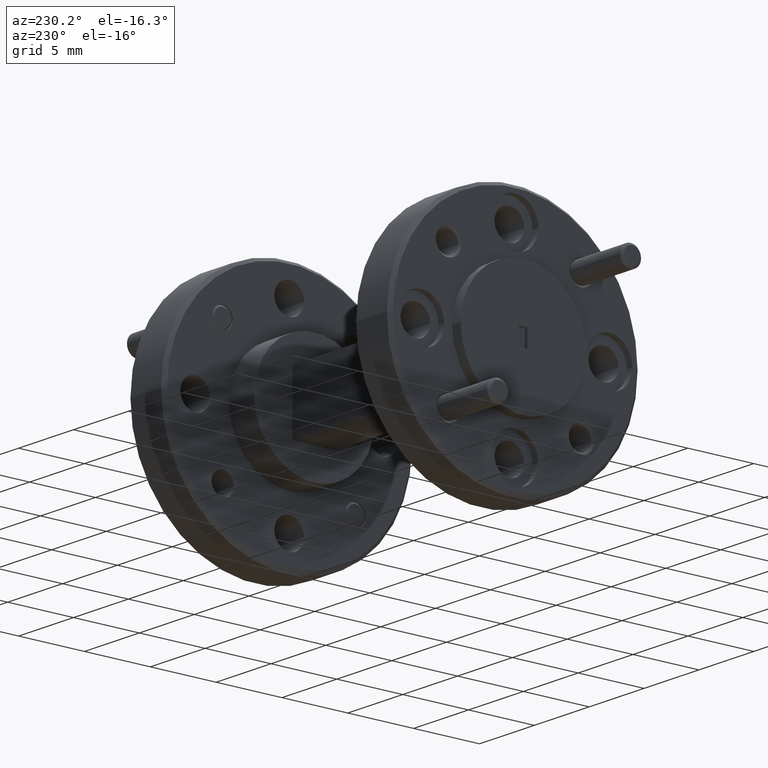
[diagram: clean part render]
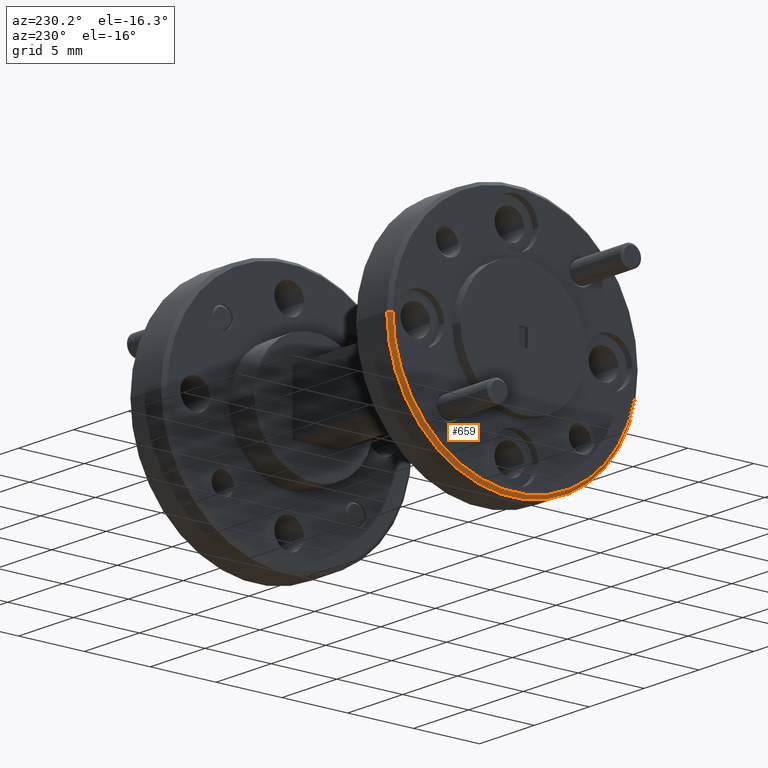
[diagram: same view with one face highlighted and labeled with its STEP entity id]
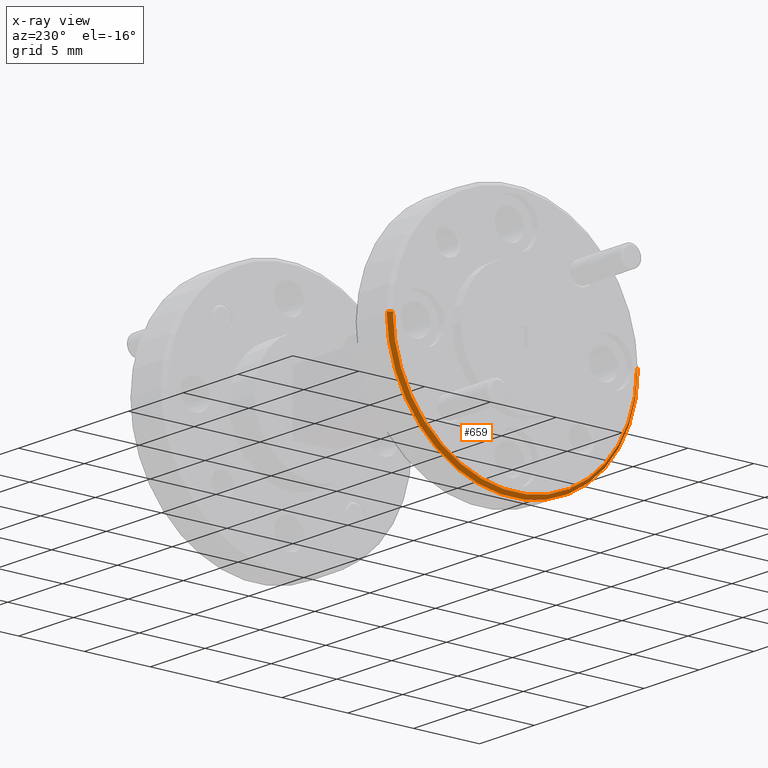
[diagram: x-ray of the same camera — body ghosted, the highlighted face saturated]
A machine part, auxiliary view. The second image highlights one B-rep face of the part: STEP entity #659.
The next image is the same camera in x-ray: the body ghosted, the highlighted face saturated — about 0% of this face is hidden behind the body in this view.
In plain terms, the highlighted conical surface has half-angle 45 deg.
Its self-contained STEP definition (entity closure, byte-faithful):
#38 = CARTESIAN_POINT ( 'NONE',  ( 0.03999999999999966100, 4.323008546051345900E-018, 0.0000000000000000000 ) ) ;
#103 = VECTOR ( 'NONE', #1210, 39.37007874015748900 ) ;
#270 = CARTESIAN_POINT ( 'NONE',  ( 0.03999999999999961900, 0.3749999999999996700, 0.0000000000000000000 ) ) ;
#372 = LINE ( 'NONE', #407, #103 ) ;
#407 = CARTESIAN_POINT ( 'NONE',  ( 0.03999999999999961900, 0.3749999999999996700, 0.0000000000000000000 ) ) ;
#586 = VECTOR ( 'NONE', #998, 39.37007874015748100 ) ;
#602 = EDGE_LOOP ( 'NONE', ( #714, #806, #2246, #4204 ) ) ;
#659 = ADVANCED_FACE ( 'NONE', ( #3597 ), #2390, .T. ) ;
#714 = ORIENTED_EDGE ( 'NONE', *, *, #2595, .F. ) ;
#806 = ORIENTED_EDGE ( 'NONE', *, *, #4302, .F. ) ;
#809 = AXIS2_PLACEMENT_3D ( 'NONE', #1247, #2671, #1990 ) ;
#827 = DIRECTION ( 'NONE',  ( -1.000000000000000000, -1.224646799147353500E-016, 0.0000000000000000000 ) ) ;
#834 = CARTESIAN_POINT ( 'NONE',  ( 0.02999999999999999200, 0.3649999999999999900, 0.0000000000000000000 ) ) ;
#998 = DIRECTION ( 'NONE',  ( 0.7071067811865454600, -0.7071067811865496800, 8.659560562354961200E-017 ) ) ;
#1006 = CIRCLE ( 'NONE', #4143, 0.3649999999999999900 ) ;
#1210 = DIRECTION ( 'NONE',  ( 0.7071067811865451300, 0.7071067811865497900, 0.0000000000000000000 ) ) ;
#1247 = CARTESIAN_POINT ( 'NONE',  ( 0.03999999999999966100, 4.323008546051345900E-018, 0.0000000000000000000 ) ) ;
#1752 = CARTESIAN_POINT ( 'NONE',  ( 0.03999999999999970200, -0.3749999999999996700, 4.592425496802570500E-017 ) ) ;
#1918 = LINE ( 'NONE', #3950, #586 ) ;
#1990 = DIRECTION ( 'NONE',  ( 1.138269997360110700E-016, -1.000000000000000000, 0.0000000000000000000 ) ) ;
#2065 = EDGE_CURVE ( 'NONE', #3239, #2636, #2625, .T. ) ;
#2246 = ORIENTED_EDGE ( 'NONE', *, *, #2855, .T. ) ;
#2390 = CONICAL_SURFACE ( 'NONE', #3411, 0.3749999999999996700, 0.7853981633974515000 ) ;
#2502 = CARTESIAN_POINT ( 'NONE',  ( 0.03000000000000003400, 3.098361746904037400E-018, 0.0000000000000000000 ) ) ;
#2595 = EDGE_CURVE ( 'NONE', #2880, #3239, #1918, .T. ) ;
#2625 = CIRCLE ( 'NONE', #809, 0.3749999999999996700 ) ;
#2636 = VERTEX_POINT ( 'NONE', #270 ) ;
#2671 = DIRECTION ( 'NONE',  ( 1.000000000000000000, 1.224646799147354200E-016, -0.0000000000000000000 ) ) ;
#2834 = CARTESIAN_POINT ( 'NONE',  ( 0.03000000000000007900, -0.3649999999999999900, 4.531193156845204800E-017 ) ) ;
#2855 = EDGE_CURVE ( 'NONE', #2858, #2636, #372, .T. ) ;
#2858 = VERTEX_POINT ( 'NONE', #834 ) ;
#2880 = VERTEX_POINT ( 'NONE', #2834 ) ;
#3054 = DIRECTION ( 'NONE',  ( -1.138269997360110700E-016, 1.000000000000000000, 0.0000000000000000000 ) ) ;
#3239 = VERTEX_POINT ( 'NONE', #1752 ) ;
#3411 = AXIS2_PLACEMENT_3D ( 'NONE', #38, #3699, #3054 ) ;
#3496 = DIRECTION ( 'NONE',  ( 1.169455476739838800E-016, -1.000000000000000000, 0.0000000000000000000 ) ) ;
#3597 = FACE_OUTER_BOUND ( 'NONE', #602, .T. ) ;
#3699 = DIRECTION ( 'NONE',  ( 1.000000000000000000, 1.224646799147354200E-016, -0.0000000000000000000 ) ) ;
#3950 = CARTESIAN_POINT ( 'NONE',  ( 0.03999999999999970200, -0.3749999999999996700, 4.592425496802570500E-017 ) ) ;
#4143 = AXIS2_PLACEMENT_3D ( 'NONE', #2502, #827, #3496 ) ;
#4204 = ORIENTED_EDGE ( 'NONE', *, *, #2065, .F. ) ;
#4302 = EDGE_CURVE ( 'NONE', #2858, #2880, #1006, .T. ) ;